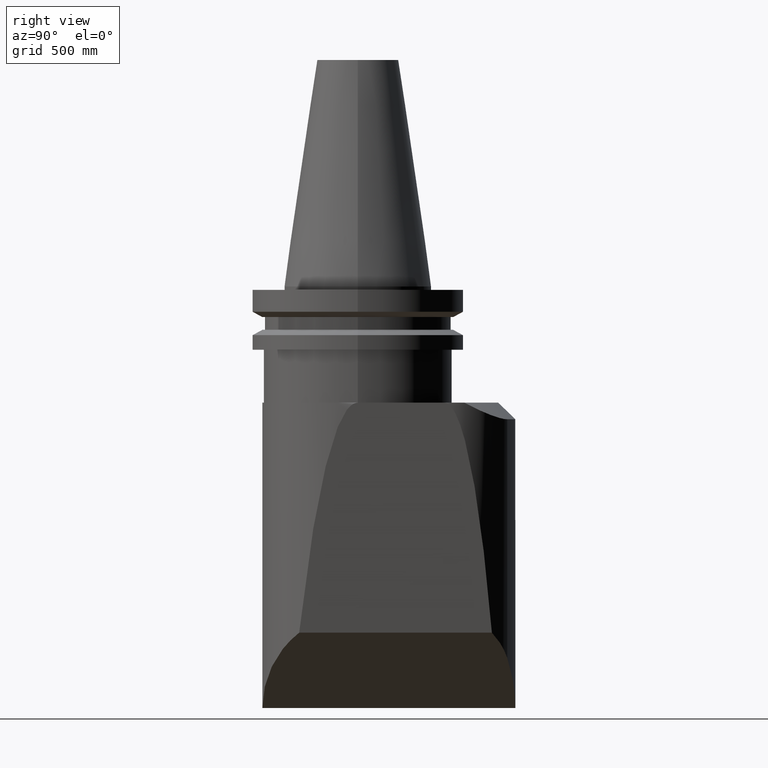
[diagram: clean part render]
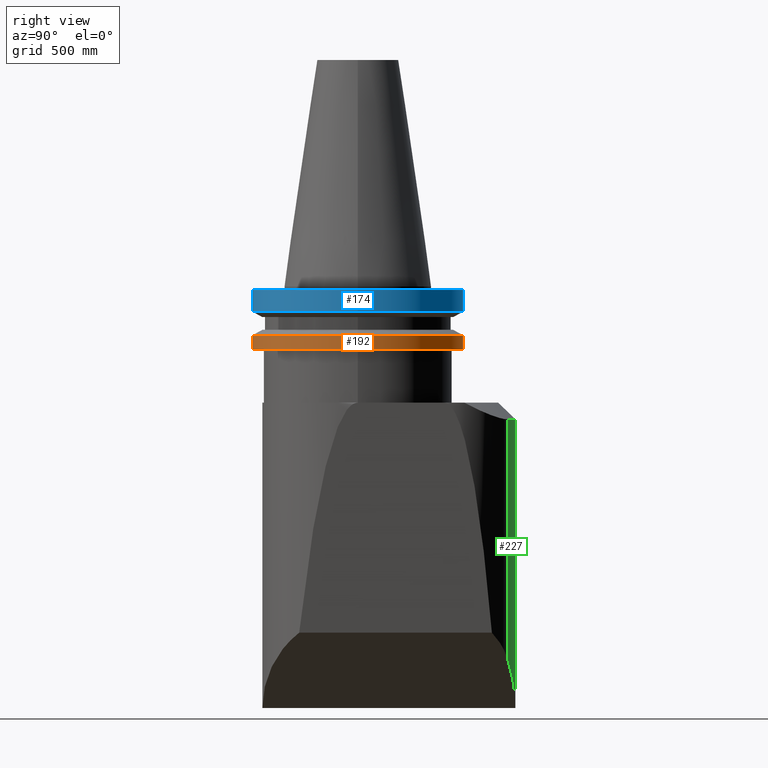
[diagram: same view with three faces highlighted in distinct colors, each labeled with its STEP entity id]
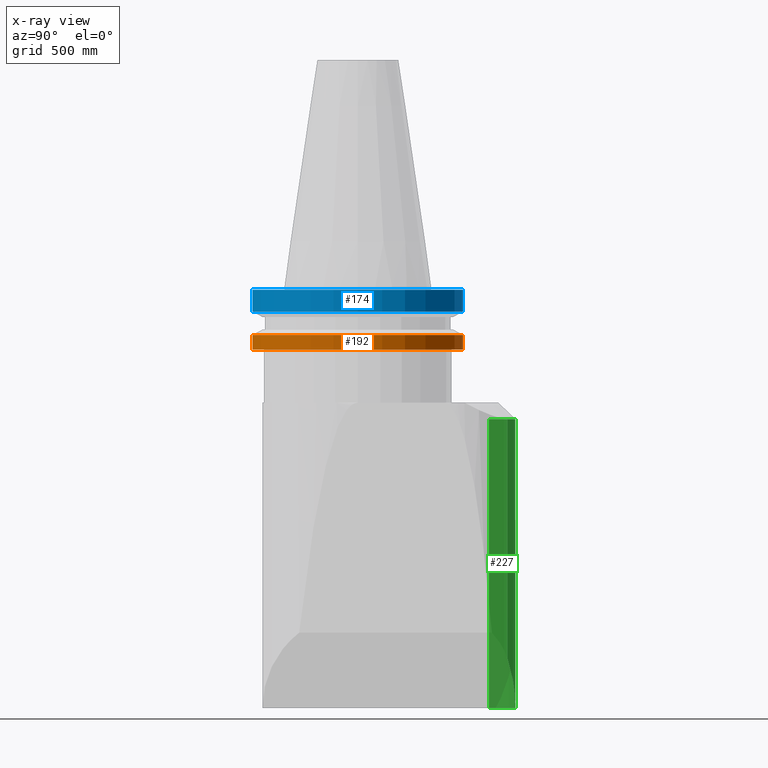
[diagram: x-ray of the same camera — body ghosted, the three highlighted faces saturated]
A machine part, right view with three faces highlighted in distinct colors.
The next image is the same camera in x-ray (body ghosted, the three faces saturated) — at least one of them is partly hidden behind the body in this view.
Their STEP definitions:

[orange] entity #192 — the highlighted cylindrical surface (bore or boss wall) has radius 806.45 mm, axis along (0, -0, -1).
#192=ADVANCED_FACE('Unnamed[1]',(#447,#448),#449,.T.);
#248=EDGE_CURVE('Unnamed[1]',#525,#525,#526,.T.);
#277=EDGE_CURVE('Unnamed[1]',#561,#561,#562,.T.);
#447=FACE_BOUND('',#813,.T.);
#448=FACE_BOUND('',#814,.T.);
#449=CYLINDRICAL_SURFACE('',#815,31.75);
#525=VERTEX_POINT('',#928);
#526=CIRCLE('',#929,31.75);
#561=VERTEX_POINT('',#984);
#562=CIRCLE('',#985,31.75);
#813=EDGE_LOOP('',(#1191));
#814=EDGE_LOOP('',(#1192));
#815=AXIS2_PLACEMENT_3D('',#1193,#1194,#1195);
#928=CARTESIAN_POINT('',(31.75,-6.72962807005191E-015,-14.65316677));
#929=AXIS2_PLACEMENT_3D('',#1277,#1278,#1279);
#984=CARTESIAN_POINT('',(31.75,-6.99885645712712E-015,-19.05));
#985=AXIS2_PLACEMENT_3D('',#1313,#1314,#1315);
#1191=ORIENTED_EDGE('',*,*,#277,.F.);
#1192=ORIENTED_EDGE('',*,*,#248,.T.);
#1193=CARTESIAN_POINT('',(2.0637237653005E-015,-1.03186188265025E-015,-16.851583385));
#1194=DIRECTION('',(1.22464679914735E-016,-6.12323399573677E-017,-1.0));
#1195=DIRECTION('',(1.0,-1.83697019872103E-016,1.22464679914735E-016));
#1277=CARTESIAN_POINT('',(1.79449537822529E-015,-8.97247689112643E-016,-14.65316677));
#1278=DIRECTION('',(1.22464679914735E-016,-6.12323399573677E-017,-1.0));
#1279=DIRECTION('',(1.0,-1.83697019872103E-016,1.22464679914735E-016));
#1313=CARTESIAN_POINT('',(2.33295215237571E-015,-1.16647607618785E-015,-19.05));
#1314=DIRECTION('',(1.22464679914735E-016,-6.12323399573677E-017,-1.0));
#1315=DIRECTION('',(1.0,-1.83697019872103E-016,1.22464679914735E-016));

[blue] entity #174 — the highlighted cylindrical surface (bore or boss wall) has radius 806.45 mm, axis along (0, -0, -1).
#174=ADVANCED_FACE('Unnamed[1]',(#420,#421),#422,.T.);
#187=EDGE_CURVE('Unnamed[1]',#440,#440,#441,.T.);
#279=EDGE_CURVE('Unnamed[1]',#564,#564,#565,.T.);
#420=FACE_BOUND('',#778,.T.);
#421=FACE_BOUND('',#779,.T.);
#422=CYLINDRICAL_SURFACE('',#780,31.75);
#440=VERTEX_POINT('',#804);
#441=CIRCLE('',#805,31.75);
#564=VERTEX_POINT('',#988);
#565=CIRCLE('',#989,31.75);
#778=EDGE_LOOP('',(#1146));
#779=EDGE_LOOP('',(#1147));
#780=AXIS2_PLACEMENT_3D('',#1148,#1149,#1150);
#804=CARTESIAN_POINT('',(31.75,-5.89361272089664E-015,-0.999999999999996));
#805=AXIS2_PLACEMENT_3D('',#1184,#1185,#1186);
#988=CARTESIAN_POINT('',(31.75,-6.29779718523789E-015,-7.60083323));
#989=AXIS2_PLACEMENT_3D('',#1316,#1317,#1318);
#1146=ORIENTED_EDGE('',*,*,#279,.F.);
#1147=ORIENTED_EDGE('',*,*,#187,.T.);
#1148=CARTESIAN_POINT('',(5.26649144255985E-016,-2.63324572127993E-016,-4.300416615));
#1149=DIRECTION('',(1.22464679914735E-016,-6.12323399573677E-017,-1.0));
#1150=DIRECTION('',(1.0,-1.83697019872103E-016,1.22464679914735E-016));
#1184=CARTESIAN_POINT('',(1.22464679914735E-016,-6.12323399573677E-017,-1.0));
#1185=DIRECTION('',(1.22464679914735E-016,-6.12323399573677E-017,-1.0));
#1186=DIRECTION('',(1.0,-1.83697019872103E-016,1.22464679914735E-016));
#1316=CARTESIAN_POINT('',(9.30833608597234E-016,-4.65416804298618E-016,-7.60083323000001));
#1317=DIRECTION('',(1.22464679914735E-016,-6.12323399573677E-017,-1.0));
#1318=DIRECTION('',(1.0,-1.83697019872103E-016,1.22464679914735E-016));

[green] entity #227 — the highlighted cylindrical surface (partial cylindrical patch) has radius 1206.5 mm, axis along (0, -0, -1).
#119=EDGE_CURVE('Unnamed[1]',#341,#329,#342,.T.);
#210=EDGE_CURVE('Unnamed[1]',#368,#329,#474,.T.);
#212=EDGE_CURVE('Unnamed[1]',#476,#477,#478,.T.);
#227=ADVANCED_FACE('Unnamed[1]',(#497),#498,.T.);
#229=EDGE_CURVE('Unnamed[1]',#341,#477,#500,.T.);
#231=EDGE_CURVE('Unnamed[1]',#476,#368,#502,.T.);
#329=VERTEX_POINT('',#616);
#341=VERTEX_POINT('',#651);
#342=LINE('',#652,#653);
#368=VERTEX_POINT('',#688);
#474=CIRCLE('',#850,47.5);
#476=VERTEX_POINT('',#853);
#477=VERTEX_POINT('',#854);
#478=CIRCLE('',#855,47.5);
#497=FACE_OUTER_BOUND('',#881,.T.);
#498=CYLINDRICAL_SURFACE('',#882,47.5);
#500=ELLIPSE('',#885,67.1751442127216,47.5);
#502=LINE('',#888,#889);
#616=CARTESIAN_POINT('',(15.1136363636375,45.0314112133712,-39.9999999999998));
#651=CARTESIAN_POINT('',(15.1136363636364,45.0314112133716,-111.886363636362));
#652=CARTESIAN_POINT('',(15.1136363636364,45.0314112133716,-251.999999999994));
#653=VECTOR('',#1046,1.0);
#688=CARTESIAN_POINT('',(-26.3076923076926,39.5494036041479,-40.0));
#850=AXIS2_PLACEMENT_3D('',#1221,#1222,#1223);
#853=CARTESIAN_POINT('',(-26.3076923076925,39.5494036041479,-126.999999999999));
#854=CARTESIAN_POINT('',(2.87179435024333E-013,47.5,-126.999999999998));
#855=AXIS2_PLACEMENT_3D('',#1224,#1225,#1226);
#881=EDGE_LOOP('',(#1240,#1241,#1242,#1243,#1244));
#882=AXIS2_PLACEMENT_3D('',#1245,#1246,#1247);
#885=AXIS2_PLACEMENT_3D('',#1248,#1249,#1250);
#888=CARTESIAN_POINT('',(-26.3076923076923,39.5494036041482,-251.999999999994));
#889=VECTOR('',#1251,1.0);
#1046=DIRECTION('',(-1.22464679914735E-016,6.12323399573677E-017,1.0));
#1221=CARTESIAN_POINT('',(4.89858719658939E-015,-2.4492935982947E-015,-39.9999999999998));
#1222=DIRECTION('',(1.22464679914735E-016,-6.12323399573677E-017,-1.0));
#1223=DIRECTION('',(1.0,-1.83697019872103E-016,1.22464679914735E-016));
#1224=CARTESIAN_POINT('',(1.55530143491712E-014,-7.77650717458558E-015,-126.999999999998));
#1225=DIRECTION('',(1.22464679914735E-016,-6.12323399573677E-017,-1.0));
#1226=DIRECTION('',(1.0,-1.83697019872103E-016,1.22464679914735E-016));
#1240=ORIENTED_EDGE('',*,*,#229,.T.);
#1241=ORIENTED_EDGE('',*,*,#212,.F.);
#1242=ORIENTED_EDGE('',*,*,#231,.T.);
#1243=ORIENTED_EDGE('',*,*,#210,.T.);
#1244=ORIENTED_EDGE('',*,*,#119,.F.);
#1245=CARTESIAN_POINT('',(1.02258007728803E-014,-5.11290038644014E-015,-83.499999999999));
#1246=DIRECTION('',(1.22464679914735E-016,-6.12323399573677E-017,-1.0));
#1247=DIRECTION('',(1.0,-1.83697019872103E-016,1.22464679914735E-016));
#1248=CARTESIAN_POINT('',(1.55530143491712E-014,-7.7765071745856E-015,-126.999999999998));
#1249=DIRECTION('',(-0.707106781186543,1.73191211247098E-016,0.707106781186552));
#1250=DIRECTION('',(0.707106781186552,-8.65956056235503E-017,0.707106781186543));
#1251=DIRECTION('',(-1.22464679914735E-016,6.12323399573677E-017,1.0));